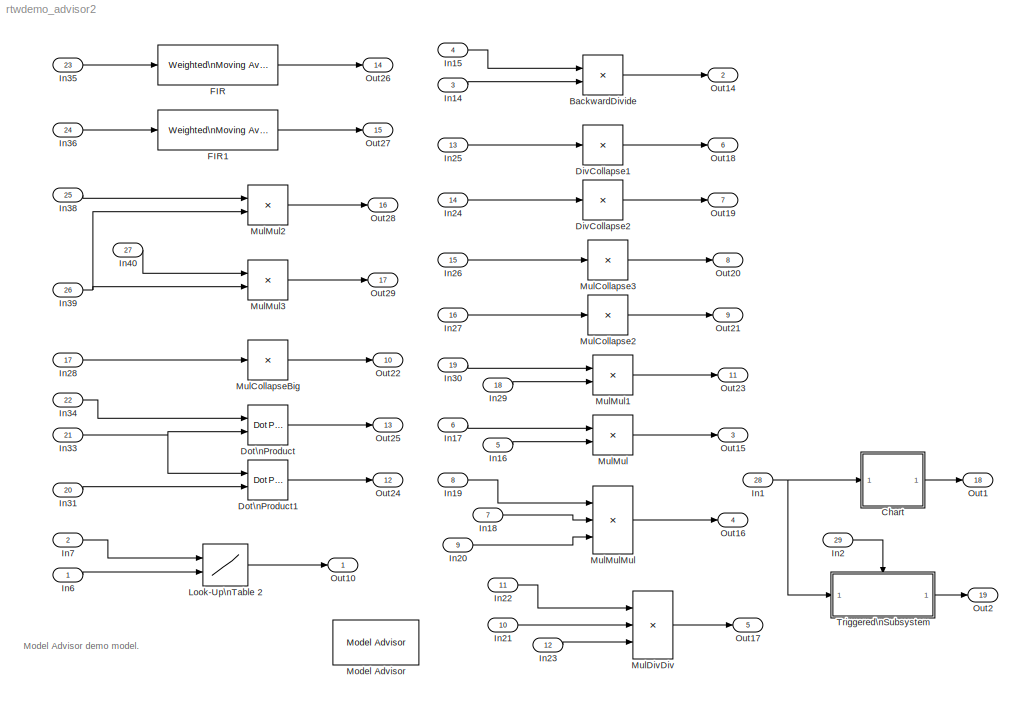
MODEL rtwdemo_advisor2
KIND model
BLOCK [Product] BackwardDivide
  InputSameDT = off
  Inputs = /*
  OutDataTypeMode = Specify via dialog
  OutScaling = 2^-10
  Ports = [2, 1]
  RndMeth = Floor
  SaturateOnIntegerOverflow = off
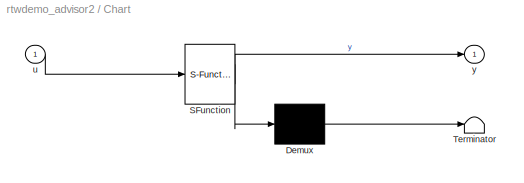
BLOCK [SubSystem] Chart
  MaskDescription = Stateflow diagram
  MaskDisplay = plot(sf('Private','sfblk','xIcon'),sf('Private','sfblk','yIcon'));text(0.5,0,sf('Private', 'sfblk', 'tIcon'),'HorizontalAl','Center','VerticalAl','Bottom');
  MaskIconFrame = off
  MaskIconOpaque = off
  MaskIconRotate = none
  MaskIconUnits = autoscale
  MaskSelfModifiable = on
  MaskType = Stateflow
  MinAlgLoopOccurrences = off
  Ports = [1, 1]
  PropExecContextAcrossSSBoundary = on
  RTWSystemCode = Auto
  TreatAsAtomicUnit = off
BLOCK [Demux] Chart/ Demux 
  Outputs = 1
  Ports = [1, 1]
BLOCK [S-Function] Chart/ SFunction 
  FunctionName = sf_sfun
  PortCounts = [1 2]
  Ports = [1, 2]
  Tag = Stateflow S-Function rtwdemo_advisor2 1
BLOCK [Terminator] Chart/ Terminator 
BLOCK [Inport] Chart/u
  IconDisplay = Port number
  LatchInput = off
  Port = 1
BLOCK [Outport] Chart/y
  BusOutputAsStruct = off
  IconDisplay = Port number
BLOCK [Product] DivCollapse1
  InputSameDT = off
  Inputs = /
  OutDataTypeMode = Specify via dialog
  OutScaling = 2^-10
  Ports = [1, 1]
  RndMeth = Floor
  SaturateOnIntegerOverflow = off
BLOCK [Product] DivCollapse2
  InputSameDT = off
  Inputs = /
  OutDataTypeMode = Specify via dialog
  OutScaling = 2^-10
  Ports = [1, 1]
  RndMeth = Floor
  SaturateOnIntegerOverflow = off
BLOCK [Reference] Dot\nProduct  REF=simulink/Math\nOperations/Dot Product
  DoSatur = off
  InputSameDT = off
  LockScale = off
  OutDataType = sfix(32)
  OutScaling = 2^-10
  OutputDataTypeScalingMode = Specify via dialog
  Ports = [2, 1]
  RndMeth = Floor
  SourceBlock = simulink/Math\nOperations/Dot Product
  SourceType = Dot Product
BLOCK [Reference] Dot\nProduct1  REF=simulink/Math\nOperations/Dot Product
  DoSatur = off
  InputSameDT = off
  LockScale = off
  OutDataType = sfix(32)
  OutScaling = 2^-10
  OutputDataTypeScalingMode = Specify via dialog
  Ports = [2, 1]
  RndMeth = Floor
  SourceBlock = simulink/Math\nOperations/Dot Product
  SourceType = Dot Product
BLOCK [Reference] FIR  REF=simulink/Discrete/Weighted\nMoving Average
  DoSatur = off
  GainDataType = sfix( 16 )
  GainDataTypeScalingMode = Specify via dialog
  GainScaling = 2^-14
  LockScale = off
  MatRadixGroup = Best Precision: Matrix-wise
  OutDataType = sfix(32)
  OutScaling = 2^-10
  OutputDataTypeScalingMode = Specify via dialog
  Ports = [1, 1]
  RndMeth = Floor
  SourceBlock = simulink/Discrete/Weighted\nMoving Average
  SourceType = Weighted Moving Average
  mgainval = [0.1:0.1:1 0.9:-0.1:0.1]
  samptime = -1
  vinit = 0.0
BLOCK [Reference] FIR1  REF=simulink/Discrete/Weighted\nMoving Average
  DoSatur = off
  GainDataType = sfix( 16 )
  GainDataTypeScalingMode = Specify via dialog
  GainScaling = 2^-14
  LockScale = off
  MatRadixGroup = Best Precision: Matrix-wise
  OutDataType = sfix(32)
  OutScaling = 2^-20
  OutputDataTypeScalingMode = Specify via dialog
  Ports = [1, 1]
  RndMeth = Floor
  SourceBlock = simulink/Discrete/Weighted\nMoving Average
  SourceType = Weighted Moving Average
  mgainval = [0.1:0.1:1 0.9:-0.1:0.1]
  samptime = -1
  vinit = 0.0
BLOCK [Inport] In1
  IconDisplay = Port number
  Interpolate = off
  LatchInput = off
  OutScaling = 2^-10
  Port = 28
BLOCK [Inport] In14
  DataType = Specify via dialog
  IconDisplay = Port number
  Interpolate = off
  LatchInput = off
  OutScaling = 2^-10
  Port = 3
  PortDimensions = 1
  SampleTime = 1
BLOCK [Inport] In15
  DataType = Specify via dialog
  IconDisplay = Port number
  Interpolate = off
  LatchInput = off
  OutScaling = 2^-10
  Port = 4
  PortDimensions = 1
  SampleTime = 1
BLOCK [Inport] In16
  DataType = Specify via dialog
  IconDisplay = Port number
  Interpolate = off
  LatchInput = off
  OutDataType = sfix(32)
  OutScaling = 2^-10
  Port = 5
  PortDimensions = 1
  SampleTime = 1
BLOCK [Inport] In17
  DataType = Specify via dialog
  IconDisplay = Port number
  Interpolate = off
  LatchInput = off
  OutScaling = 2^-10
  Port = 6
  PortDimensions = 1
  SampleTime = 1
BLOCK [Inport] In18
  DataType = Specify via dialog
  IconDisplay = Port number
  Interpolate = off
  LatchInput = off
  OutScaling = 2^-10
  Port = 7
  PortDimensions = 1
  SampleTime = 1
BLOCK [Inport] In19
  DataType = Specify via dialog
  IconDisplay = Port number
  Interpolate = off
  LatchInput = off
  OutScaling = 2^-10
  Port = 8
  PortDimensions = 1
  SampleTime = 1
BLOCK [Inport] In2
  DataType = boolean
  IconDisplay = Port number
  Interpolate = off
  LatchInput = off
  OutScaling = 2^-10
  Port = 29
BLOCK [Inport] In20
  DataType = Specify via dialog
  IconDisplay = Port number
  Interpolate = off
  LatchInput = off
  OutScaling = 2^-10
  Port = 9
  PortDimensions = 1
  SampleTime = 1
BLOCK [Inport] In21
  DataType = Specify via dialog
  IconDisplay = Port number
  Interpolate = off
  LatchInput = off
  OutScaling = 2^-10
  Port = 10
  PortDimensions = 1
  SampleTime = 1
BLOCK [Inport] In22
  DataType = Specify via dialog
  IconDisplay = Port number
  Interpolate = off
  LatchInput = off
  OutScaling = 2^-10
  Port = 11
  PortDimensions = 1
  SampleTime = 1
BLOCK [Inport] In23
  DataType = Specify via dialog
  IconDisplay = Port number
  Interpolate = off
  LatchInput = off
  OutScaling = 2^-10
  Port = 12
  PortDimensions = 1
  SampleTime = 1
BLOCK [Inport] In24
  DataType = Specify via dialog
  IconDisplay = Port number
  Interpolate = off
  LatchInput = off
  OutScaling = 2^-10
  Port = 14
  PortDimensions = 2
  SampleTime = 1
BLOCK [Inport] In25
  DataType = Specify via dialog
  IconDisplay = Port number
  Interpolate = off
  LatchInput = off
  OutScaling = 2^-10
  Port = 13
  PortDimensions = 1
  SampleTime = 1
BLOCK [Inport] In26
  DataType = Specify via dialog
  IconDisplay = Port number
  Interpolate = off
  LatchInput = off
  OutScaling = 2^-10
  Port = 15
  PortDimensions = 3
  SampleTime = 1
BLOCK [Inport] In27
  DataType = Specify via dialog
  IconDisplay = Port number
  Interpolate = off
  LatchInput = off
  OutScaling = 2^-10
  Port = 16
  PortDimensions = 2
  SampleTime = 1
BLOCK [Inport] In28
  DataType = Specify via dialog
  IconDisplay = Port number
  Interpolate = off
  LatchInput = off
  OutDataType = sfix(32)
  OutScaling = 2^-10
  Port = 17
  PortDimensions = 2
  SampleTime = 1
BLOCK [Inport] In29
  DataType = Specify via dialog
  IconDisplay = Port number
  Interpolate = off
  LatchInput = off
  OutScaling = 2^-10
  Port = 18
  PortDimensions = 1
  SampleTime = 1
BLOCK [Inport] In30
  DataType = Specify via dialog
  IconDisplay = Port number
  Interpolate = off
  LatchInput = off
  OutScaling = 2^-10
  Port = 19
  PortDimensions = 1
  SampleTime = 1
BLOCK [Inport] In31
  DataType = Specify via dialog
  IconDisplay = Port number
  Interpolate = off
  LatchInput = off
  OutDataType = sfix(32)
  OutScaling = 2^-10
  Port = 20
  PortDimensions = 1
  SampleTime = 1
BLOCK [Inport] In33
  DataType = Specify via dialog
  IconDisplay = Port number
  Interpolate = off
  LatchInput = off
  OutScaling = 2^-10
  Port = 21
  PortDimensions = 1
  SampleTime = 1
BLOCK [Inport] In34
  DataType = Specify via dialog
  IconDisplay = Port number
  Interpolate = off
  LatchInput = off
  OutScaling = 2^-10
  Port = 22
  PortDimensions = 1
  SampleTime = 1
BLOCK [Inport] In35
  DataType = Specify via dialog
  IconDisplay = Port number
  Interpolate = off
  LatchInput = off
  OutDataType = sfix(32)
  OutScaling = 2^-10
  Port = 23
  PortDimensions = 1
  SampleTime = 1
BLOCK [Inport] In36
  DataType = Specify via dialog
  IconDisplay = Port number
  Interpolate = off
  LatchInput = off
  OutDataType = sfix(32)
  OutScaling = 2^-10
  Port = 24
  PortDimensions = 1
  SampleTime = 1
BLOCK [Inport] In38
  DataType = Specify via dialog
  IconDisplay = Port number
  Interpolate = off
  LatchInput = off
  OutScaling = 1.01 * 2^-10
  Port = 25
  PortDimensions = 1
  SampleTime = 1
BLOCK [Inport] In39
  DataType = Specify via dialog
  IconDisplay = Port number
  Interpolate = off
  LatchInput = off
  OutScaling = 2^-10
  Port = 26
  PortDimensions = 1
  SampleTime = 1
BLOCK [Inport] In40
  DataType = Specify via dialog
  IconDisplay = Port number
  Interpolate = off
  LatchInput = off
  OutScaling = [2^-10 1]
  Port = 27
  PortDimensions = 1
  SampleTime = 1
BLOCK [Inport] In6
  DataType = Specify via dialog
  IconDisplay = Port number
  Interpolate = off
  LatchInput = off
  OutScaling = 2^-10
  Port = 1
  PortDimensions = 1
  SampleTime = 1
BLOCK [Inport] In7
  DataType = Specify via dialog
  IconDisplay = Port number
  Interpolate = off
  LatchInput = off
  OutScaling = 2^-10
  Port = 2
  PortDimensions = 1
  SampleTime = 1
BLOCK [Lookup2D] Look-Up\nTable 2
  ColumnIndex = [1 2 7]
  DialogController = Simulink.DDGSource
  InputSameDT = off
  LookUpMeth = Interpolation-Use End Values
  OutDataTypeMode = Specify via dialog
  OutScaling = 2^-10
  OutputValues = [4 5 6;16 19 20;10 18 23]
  RowIndex = [1:3]
  SaturateOnIntegerOverflow = off
BLOCK [Reference] Model Advisor  REF=rtwdemowidgets/Model Advisor
  Ports = []
  ShowPortLabels = on
  SourceBlock = rtwdemowidgets/Model Advisor
  attrib_overrides = {}
BLOCK [Product] MulCollapse2
  InputSameDT = off
  Inputs = 1
  OutDataTypeMode = Specify via dialog
  OutScaling = 2^-10
  Ports = [1, 1]
  RndMeth = Floor
  SaturateOnIntegerOverflow = off
BLOCK [Product] MulCollapse3
  InputSameDT = off
  Inputs = *
  OutDataTypeMode = Specify via dialog
  OutScaling = 2^-10
  Ports = [1, 1]
  RndMeth = Floor
  SaturateOnIntegerOverflow = off
BLOCK [Product] MulCollapseBig
  InputSameDT = off
  Inputs = 1
  OutDataTypeMode = Specify via dialog
  OutScaling = 2^-10
  Ports = [1, 1]
  RndMeth = Floor
  SaturateOnIntegerOverflow = off
BLOCK [Product] MulDivDiv
  InputSameDT = off
  Inputs = *//
  OutDataTypeMode = Specify via dialog
  OutScaling = 2^-10
  Ports = [3, 1]
  RndMeth = Floor
  SaturateOnIntegerOverflow = off
BLOCK [Product] MulMul
  InputSameDT = off
  OutDataTypeMode = Specify via dialog
  OutScaling = 2^-3
  Ports = [2, 1]
  RndMeth = Floor
  SaturateOnIntegerOverflow = off
BLOCK [Product] MulMul1
  InputSameDT = off
  OutDataTypeMode = Specify via dialog
  OutScaling = 2^-10
  Ports = [2, 1]
  RndMeth = Floor
  SaturateOnIntegerOverflow = off
BLOCK [Product] MulMul2
  InputSameDT = off
  OutDataTypeMode = Specify via dialog
  OutScaling = 2^-10
  Ports = [2, 1]
  RndMeth = Floor
  SaturateOnIntegerOverflow = off
BLOCK [Product] MulMul3
  InputSameDT = off
  OutDataTypeMode = Specify via dialog
  OutScaling = 2^-10
  Ports = [2, 1]
  RndMeth = Floor
  SaturateOnIntegerOverflow = off
BLOCK [Product] MulMulMul
  InputSameDT = off
  Inputs = 3
  OutDataTypeMode = Specify via dialog
  OutScaling = 2^-10
  Ports = [3, 1]
  RndMeth = Floor
  SaturateOnIntegerOverflow = off
BLOCK [Outport] Out1
  BusOutputAsStruct = off
  IconDisplay = Port number
  Port = 18
BLOCK [Outport] Out10
  BusOutputAsStruct = off
  IconDisplay = Port number
BLOCK [Outport] Out14
  BusOutputAsStruct = off
  IconDisplay = Port number
  Port = 2
BLOCK [Outport] Out15
  BusOutputAsStruct = off
  IconDisplay = Port number
  Port = 3
BLOCK [Outport] Out16
  BusOutputAsStruct = off
  IconDisplay = Port number
  Port = 4
BLOCK [Outport] Out17
  BusOutputAsStruct = off
  IconDisplay = Port number
  Port = 5
BLOCK [Outport] Out18
  BusOutputAsStruct = off
  IconDisplay = Port number
  Port = 6
BLOCK [Outport] Out19
  BusOutputAsStruct = off
  IconDisplay = Port number
  Port = 7
BLOCK [Outport] Out2
  BusOutputAsStruct = off
  IconDisplay = Port number
  Port = 19
BLOCK [Outport] Out20
  BusOutputAsStruct = off
  IconDisplay = Port number
  Port = 8
BLOCK [Outport] Out21
  BusOutputAsStruct = off
  IconDisplay = Port number
  Port = 9
BLOCK [Outport] Out22
  BusOutputAsStruct = off
  IconDisplay = Port number
  Port = 10
BLOCK [Outport] Out23
  BusOutputAsStruct = off
  IconDisplay = Port number
  Port = 11
BLOCK [Outport] Out24
  BusOutputAsStruct = off
  IconDisplay = Port number
  Port = 12
BLOCK [Outport] Out25
  BusOutputAsStruct = off
  IconDisplay = Port number
  Port = 13
BLOCK [Outport] Out26
  BusOutputAsStruct = off
  IconDisplay = Port number
  Port = 14
BLOCK [Outport] Out27
  BusOutputAsStruct = off
  IconDisplay = Port number
  Port = 15
BLOCK [Outport] Out28
  BusOutputAsStruct = off
  IconDisplay = Port number
  Port = 16
BLOCK [Outport] Out29
  BusOutputAsStruct = off
  IconDisplay = Port number
  Port = 17
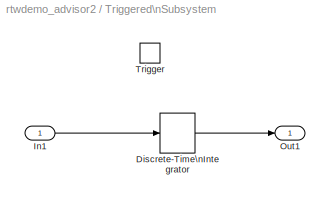
BLOCK [SubSystem] Triggered\nSubsystem
  MinAlgLoopOccurrences = off
  Ports = [1, 1, 0, 1]
  PropExecContextAcrossSSBoundary = on
  RTWSystemCode = Auto
  TreatAsAtomicUnit = on
BLOCK [DiscreteIntegrator] Triggered\nSubsystem/Discrete-Time\nIntegrator
  ExternalReset = none
  ICPrevOutput = DiscIntNeverNeededParam
  ICPrevScaledInput = DiscIntNeverNeededParam
  InitialConditionSource = internal
  IntegratorMethod = Integration: Forward Euler
  Ports = [1, 1]
  SampleTime = -1
BLOCK [Inport] Triggered\nSubsystem/In1
  IconDisplay = Port number
  LatchInput = off
  Port = 1
BLOCK [Outport] Triggered\nSubsystem/Out1
  BusOutputAsStruct = off
  IconDisplay = Port number
BLOCK [TriggerPort] Triggered\nSubsystem/Trigger
  Ports = []
ANNOTATION (root): Model Advisor demo model.
LINE BackwardDivide:1 -> Out14:1
LINE Chart/ Demux :1 -> Chart/ Terminator :1
LINE Chart/ SFunction :1 -> Chart/ Demux :1
LINE Chart/ SFunction :2 -> Chart/y:1
LINE Chart/u:1 -> Chart/ SFunction :1
LINE Chart:1 -> Out1:1
LINE DivCollapse1:1 -> Out18:1
LINE DivCollapse2:1 -> Out19:1
LINE Dot\nProduct1:1 -> Out24:1
LINE Dot\nProduct:1 -> Out25:1
LINE FIR1:1 -> Out27:1
LINE FIR:1 -> Out26:1
LINE In14:1 -> BackwardDivide:2
LINE In15:1 -> BackwardDivide:1
LINE In16:1 -> MulMul:2
LINE In17:1 -> MulMul:1
LINE In18:1 -> MulMulMul:2
LINE In19:1 -> MulMulMul:1
NET In1:1 -> Chart:1, Triggered\nSubsystem:1
LINE In20:1 -> MulMulMul:3
LINE In21:1 -> MulDivDiv:2
LINE In22:1 -> MulDivDiv:1
LINE In23:1 -> MulDivDiv:3
LINE In24:1 -> DivCollapse2:1
LINE In25:1 -> DivCollapse1:1
LINE In26:1 -> MulCollapse3:1
LINE In27:1 -> MulCollapse2:1
LINE In28:1 -> MulCollapseBig:1
LINE In29:1 -> MulMul1:2
LINE In2:1 -> Triggered\nSubsystem:trigger
LINE In30:1 -> MulMul1:1
LINE In31:1 -> Dot\nProduct1:2
NET In33:1 -> Dot\nProduct1:1, Dot\nProduct:2
LINE In34:1 -> Dot\nProduct:1
LINE In35:1 -> FIR:1
LINE In36:1 -> FIR1:1
LINE In38:1 -> MulMul2:1
NET In39:1 -> MulMul2:2, MulMul3:2
LINE In40:1 -> MulMul3:1
LINE In6:1 -> Look-Up\nTable 2:2
LINE In7:1 -> Look-Up\nTable 2:1
LINE Look-Up\nTable 2:1 -> Out10:1
LINE MulCollapse2:1 -> Out21:1
LINE MulCollapse3:1 -> Out20:1
LINE MulCollapseBig:1 -> Out22:1
LINE MulDivDiv:1 -> Out17:1
LINE MulMul1:1 -> Out23:1
LINE MulMul2:1 -> Out28:1
LINE MulMul3:1 -> Out29:1
LINE MulMul:1 -> Out15:1
LINE MulMulMul:1 -> Out16:1
LINE Triggered\nSubsystem/Discrete-Time\nIntegrator:1 -> Triggered\nSubsystem/Out1:1
LINE Triggered\nSubsystem/In1:1 -> Triggered\nSubsystem/Discrete-Time\nIntegrator:1
LINE Triggered\nSubsystem:1 -> Out2:1
note: NET lines group one-source signal fan-out (src -> all destinations, sorted); 1:1 wires keep LINE
CHART Chart states=2 transitions=2
  STATE_LABEL 'B'
  STATE_LABEL 'A'
